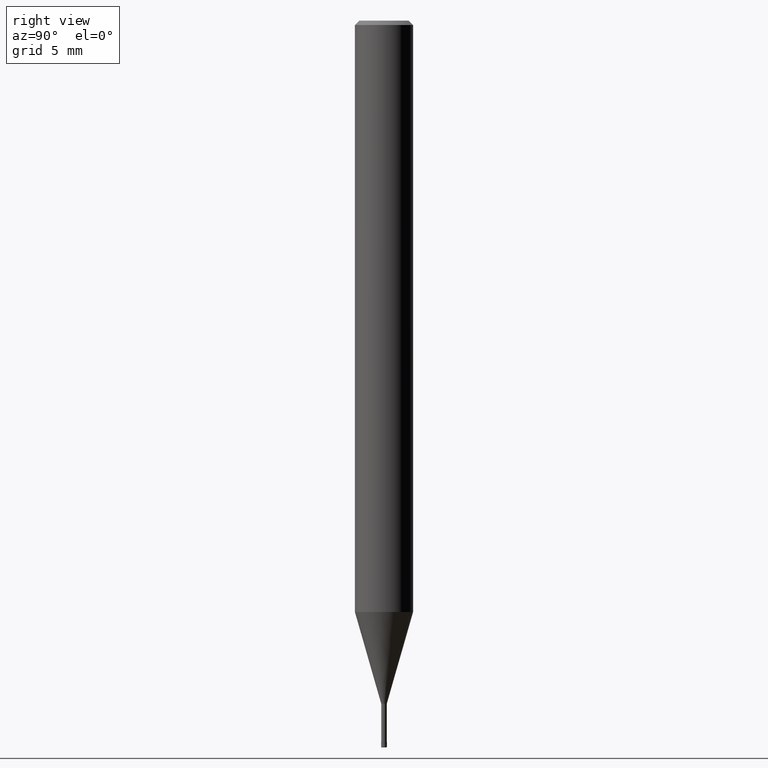
[diagram: clean part render]
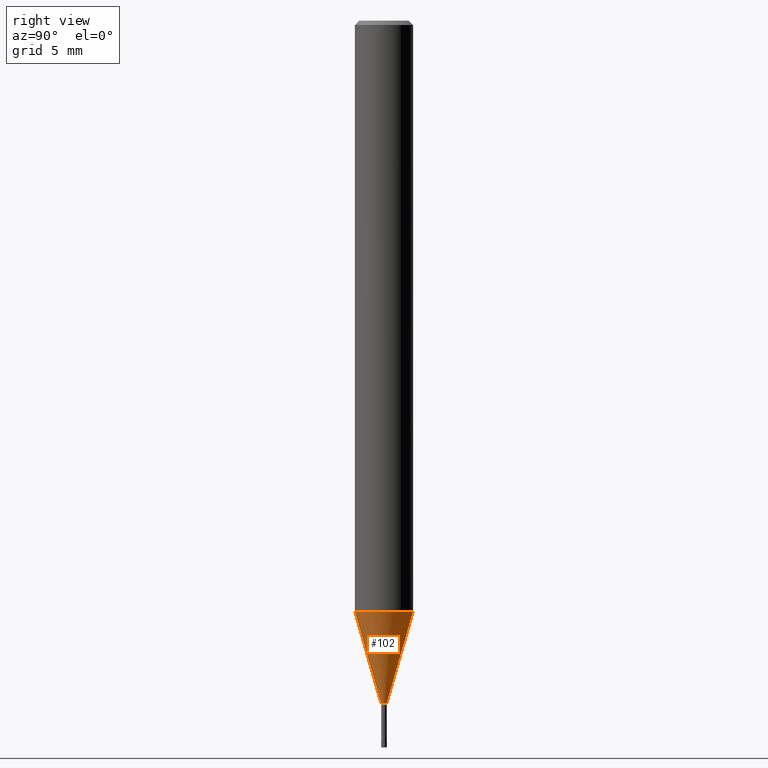
[diagram: same view with one face highlighted and labeled with its STEP entity id]
A machine part, right view. The second image highlights one B-rep face of the part: STEP entity #102.
In plain terms, the highlighted conical surface has half-angle 16.001 deg.
Its self-contained STEP definition (entity closure, byte-faithful):
#102=ADVANCED_FACE('',(#256),#257,.T.);
#112=VERTEX_POINT('',#269);
#120=EDGE_CURVE('',#208,#112,#280,.T.);
#138=VERTEX_POINT('',#301);
#144=EDGE_CURVE('',#112,#138,#308,.T.);
#152=VERTEX_POINT('',#317);
#172=EDGE_CURVE('',#152,#208,#339,.T.);
#186=EDGE_CURVE('',#152,#138,#356,.T.);
#208=VERTEX_POINT('',#379);
#256=FACE_OUTER_BOUND('',#419,.T.);
#257=CONICAL_SURFACE('',#420,1.09495,0.279261921280279);
#269=CARTESIAN_POINT('',(2.3261397690856E-017,-0.18995,-47.0));
#280=CIRCLE('',#444,0.18995);
#301=CARTESIAN_POINT('',(2.44915147732706E-016,-1.99995,-40.688));
#308=LINE('',#478,#479);
#317=CARTESIAN_POINT('',(0.0,1.99995,-40.688));
#339=LINE('',#516,#517);
#356=CIRCLE('',#539,1.99995);
#379=CARTESIAN_POINT('',(0.0,0.18995,-47.0));
#419=EDGE_LOOP('',(#615,#616,#617,#618));
#420=AXIS2_PLACEMENT_3D('',#619,#620,#621);
#444=AXIS2_PLACEMENT_3D('',#652,#653,#654);
#478=CARTESIAN_POINT('',(1.34088272711781E-016,-1.09495,-43.844));
#479=VECTOR('',#694,1.0);
#516=CARTESIAN_POINT('',(-1.34088272711781E-016,1.09495,-43.844));
#517=VECTOR('',#732,1.0);
#539=AXIS2_PLACEMENT_3D('',#762,#763,#764);
#615=ORIENTED_EDGE('',*,*,#172,.F.);
#616=ORIENTED_EDGE('',*,*,#186,.T.);
#617=ORIENTED_EDGE('',*,*,#144,.F.);
#618=ORIENTED_EDGE('',*,*,#120,.F.);
#619=CARTESIAN_POINT('',(0.0,0.0,-43.844));
#620=DIRECTION('',(-0.0,-0.0,1.0));
#621=DIRECTION('',(0.0,1.0,0.0));
#652=CARTESIAN_POINT('',(0.0,0.0,-47.0));
#653=DIRECTION('',(0.0,0.0,-1.0));
#654=DIRECTION('',(0.0,1.0,0.0));
#694=DIRECTION('',(3.37558135426109E-017,-0.275646238787252,0.961259148743169));
#732=DIRECTION('',(3.37558135426109E-017,-0.275646238787252,-0.961259148743169));
#762=CARTESIAN_POINT('',(0.0,0.0,-40.688));
#763=DIRECTION('',(0.0,0.0,-1.0));
#764=DIRECTION('',(0.0,1.0,0.0));